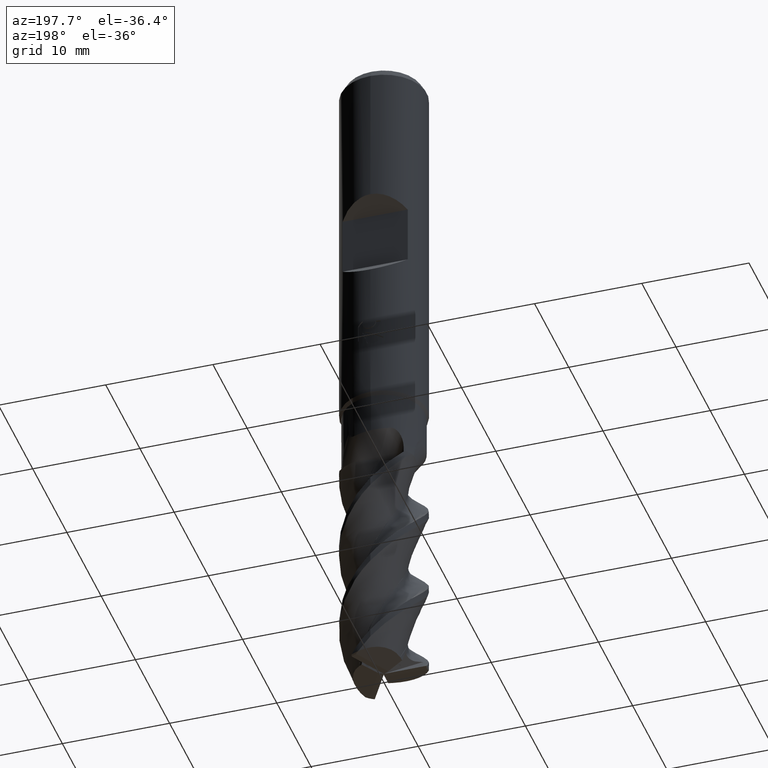
[diagram: clean part render]
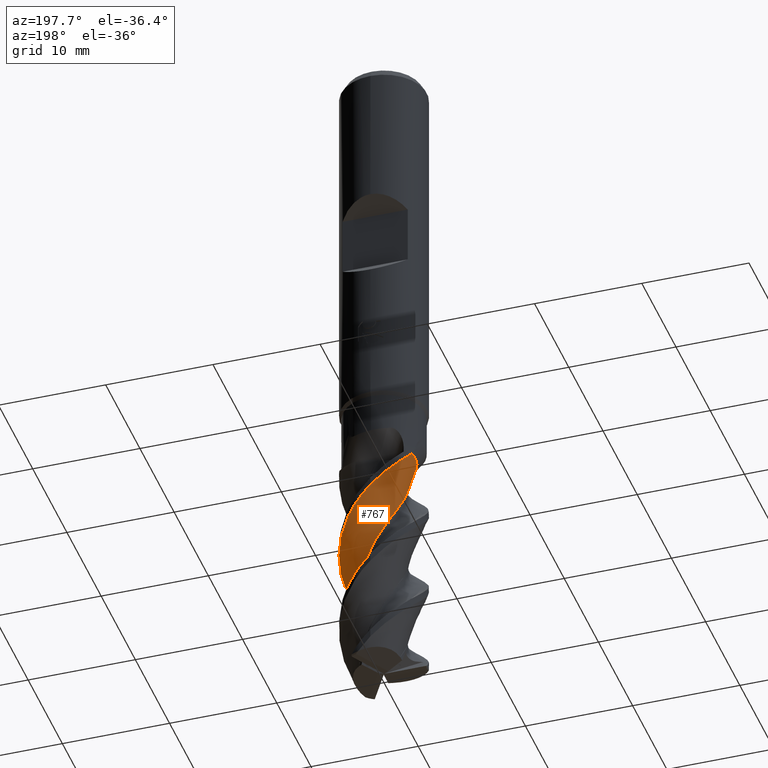
[diagram: same view with one face highlighted and labeled with its STEP entity id]
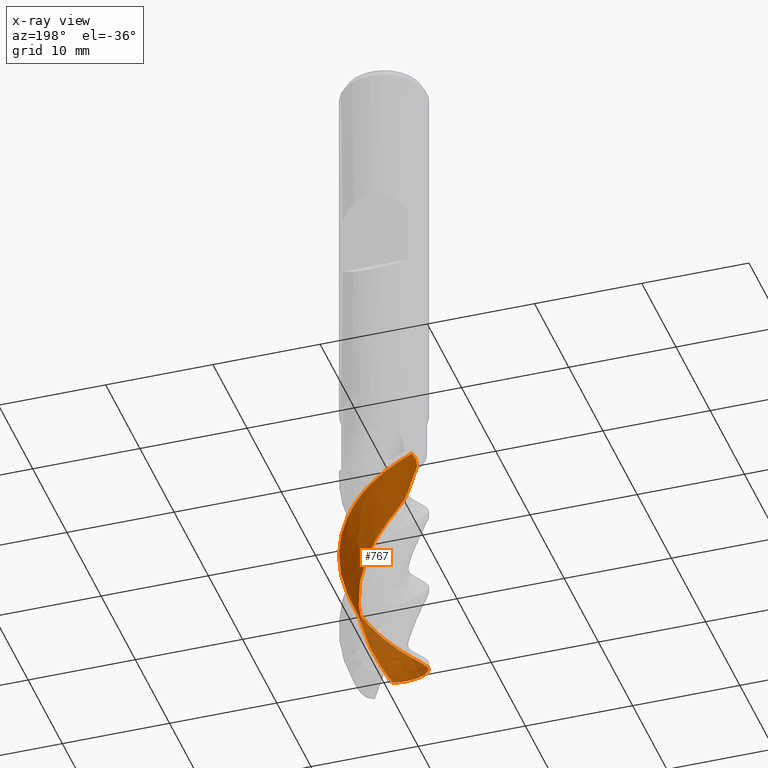
[diagram: x-ray of the same camera — body ghosted, the highlighted face saturated]
A machine part, auxiliary view. The second image highlights one B-rep face of the part: STEP entity #767.
The next image is the same camera in x-ray: the body ghosted, the highlighted face saturated — about 5% of this face is hidden behind the body in this view.
In plain terms, the highlighted face is a freeform B-spline surface patch.
Its self-contained STEP definition (entity closure, byte-faithful):
#705=VERTEX_POINT('',#1667);
#715=VERTEX_POINT('',#1677);
#767=ADVANCED_FACE('',(#1730),#1731,.T.);
#789=EDGE_CURVE('',#1345,#995,#1755,.T.);
#907=VERTEX_POINT('',#1887);
#943=EDGE_CURVE('',#1091,#715,#1924,.T.);
#995=VERTEX_POINT('',#1980);
#1051=EDGE_CURVE('',#907,#1091,#2040,.T.);
#1091=VERTEX_POINT('',#2084);
#1133=VERTEX_POINT('',#2129);
#1147=EDGE_CURVE('',#1133,#907,#2143,.T.);
#1209=EDGE_CURVE('',#705,#1133,#2213,.T.);
#1343=EDGE_CURVE('',#715,#1345,#2359,.T.);
#1345=VERTEX_POINT('',#2361);
#1397=EDGE_CURVE('',#995,#705,#2419,.T.);
#1667=CARTESIAN_POINT('',(-3.11849878262376E-010,3.99991785518104,-45.9102846489255));
#1677=CARTESIAN_POINT('',(-0.1212253928335,-2.25761855208542,-63.4433879242641));
#1730=FACE_OUTER_BOUND('',#5062,.T.);
#1731=B_SPLINE_SURFACE_WITH_KNOTS('',3,3,((#5063,#5064,#5065,#5066,#5067,#5068,#5069,#5070,#5071,#5072,#5073,#5074,#5075,#5076,#5077,#5078,#5079,#5080,#5081,#5082,#5083,#5084,#5085,#5086,#5087,#5088,#5089,#5090,#5091,#5092,#5093,#5094,#5095,#5096,#5097,#5098,#5099,#5100,#5101,#5102,#5103,#5104,#5105,#5106,#5107,#5108,#5109,#5110,#5111,#5112,#5113,#5114,#5115,#5116),(#5117,#5118,#5119,#5120,#5121,#5122,#5123,#5124,#5125,#5126,#5127,#5128,#5129,#5130,#5131,#5132,#5133,#5134,#5135,#5136,#5137,#5138,#5139,#5140,#5141,#5142,#5143,#5144,#5145,#5146,#5147,#5148,#5149,#5150,#5151,#5152,#5153,#5154,#5155,#5156,#5157,#5158,#5159,#5160,#5161,#5162,#5163,#5164,#5165,#5166,#5167,#5168,#5169,#5170),(#5171,#5172,#5173,#5174,#5175,#5176,#5177,#5178,#5179,#5180,#5181,#5182,#5183,#5184,#5185,#5186,#5187,#5188,#5189,#5190,#5191,#5192,#5193,#5194,#5195,#5196,#5197,#5198,#5199,#5200,#5201,#5202,#5203,#5204,#5205,#5206,#5207,#5208,#5209,#5210,#5211,#5212,#5213,#5214,#5215,#5216,#5217,#5218,#5219,#5220,#5221,#5222,#5223,#5224),(#5225,#5226,#5227,#5228,#5229,#5230,#5231,#5232,#5233,#5234,#5235,#5236,#5237,#5238,#5239,#5240,#5241,#5242,#5243,#5244,#5245,#5246,#5247,#5248,#5249,#5250,#5251,#5252,#5253,#5254,#5255,#5256,#5257,#5258,#5259,#5260,#5261,#5262,#5263,#5264,#5265,#5266,#5267,#5268,#5269,#5270,#5271,#5272,#5273,#5274,#5275,#5276,#5277,#5278),(#5279,#5280,#5281,#5282,#5283,#5284,#5285,#5286,#5287,#5288,#5289,#5290,#5291,#5292,#5293,#5294,#5295,#5296,#5297,#5298,#5299,#5300,#5301,#5302,#5303,#5304,#5305,#5306,#5307,#5308,#5309,#5310,#5311,#5312,#5313,#5314,#5315,#5316,#5317,#5318,#5319,#5320,#5321,#5322,#5323,#5324,#5325,#5326,#5327,#5328,#5329,#5330,#5331,#5332),(#5333,#5334,#5335,#5336,#5337,#5338,#5339,#5340,#5341,#5342,#5343,#5344,#5345,#5346,#5347,#5348,#5349,#5350,#5351,#5352,#5353,#5354,#5355,#5356,#5357,#5358,#5359,#5360,#5361,#5362,#5363,#5364,#5365,#5366,#5367,#5368,#5369,#5370,#5371,#5372,#5373,#5374,#5375,#5376,#5377,#5378,#5379,#5380,#5381,#5382,#5383,#5384,#5385,#5386),(#5387,#5388,#5389,#5390,#5391,#5392,#5393,#5394,#5395,#5396,#5397,#5398,#5399,#5400,#5401,#5402,#5403,#5404,#5405,#5406,#5407,#5408,#5409,#5410,#5411,#5412,#5413,#5414,#5415,#5416,#5417,#5418,#5419,#5420,#5421,#5422,#5423,#5424,#5425,#5426,#5427,#5428,#5429,#5430,#5431,#5432,#5433,#5434,#5435,#5436,#5437,#5438,#5439,#5440)),.UNSPECIFIED.,.F.,.F.,.F.,(4,1,1,1,4),(4,1,2,1,2,1,2,1,1,2,1,2,1,2,1,2,1,2,1,2,1,2,1,2,1,2,1,2,1,2,1,2,1,2,1,4),(-1.379010217161,-1.03425766287075,-0.689505108580499,-0.34475255429025,0.0),(0.0,0.596702157013119,1.19340431402624,1.79010647103936,2.38680862805248,3.58021294207871,4.77361725610495,5.66867049162463,6.56372372714431,7.16042588415743,8.35383019818367,9.5472345122099,10.7406388262361,11.9340431402624,13.1274474542886,14.3208517683149,15.5142560823411,16.7076603963673,17.9010647103936,19.0944690244198,20.287873338446,21.4812776524723,22.6746819664985,23.8680862805248,25.061490594551,26.2548949085772,27.4482992226035,28.6417035366297,29.8351078506559,31.0285121646822,32.2219164787084,33.4153207927347,34.6087251067609,35.8021294207871,36.9955337348134,38.1889380488396),.UNSPECIFIED.);
#1755=B_SPLINE_CURVE_WITH_KNOTS('',3,(#5751,#5752,#5753,#5754,#5755,#5756,#5757,#5758,#5759,#5760,#5761,#5762,#5763,#5764,#5765,#5766,#5767,#5768,#5769,#5770,#5771,#5772,#5773,#5774,#5775,#5776,#5777,#5778,#5779,#5780,#5781,#5782,#5783,#5784,#5785,#5786,#5787,#5788,#5789,#5790,#5791,#5792,#5793,#5794,#5795,#5796,#5797,#5798,#5799,#5800),.UNSPECIFIED.,.F.,.F.,(4,2,2,2,2,2,2,2,2,2,2,2,2,2,2,2,2,2,2,2,2,2,2,2,4),(0.0,1.5019320736282,2.30167969923932,3.9873909391411,5.35082874484163,5.58136968233963,8.37320094599386,9.31668018434213,10.3901732542308,10.7300989914793,11.4410454786039,11.9612889898165,13.0401489425727,13.7303633139196,14.2408802886716,15.2992926305163,15.9583148827374,16.5048707961732,17.5976525858075,18.2710035322948,18.8306730159408,19.1129636463635,20.0328987728864,20.4245661432415,20.9625089316969),.UNSPECIFIED.);
#1887=CARTESIAN_POINT('',(-2.36372497592398,-0.881446417989688,-42.0));
#1924=B_SPLINE_CURVE_WITH_KNOTS('',3,(#6692,#6693,#6694,#6695,#6696,#6697,#6698,#6699,#6700,#6701,#6702,#6703,#6704,#6705,#6706,#6707,#6708,#6709,#6710,#6711,#6712,#6713,#6714,#6715,#6716,#6717,#6718,#6719,#6720,#6721,#6722,#6723,#6724,#6725,#6726,#6727,#6728,#6729,#6730,#6731,#6732,#6733,#6734,#6735,#6736,#6737,#6738,#6739,#6740,#6741,#6742,#6743,#6744,#6745,#6746,#6747,#6748,#6749,#6750,#6751,#6752,#6753,#6754,#6755,#6756,#6757,#6758,#6759,#6760,#6761,#6762,#6763,#6764,#6765,#6766,#6767),.UNSPECIFIED.,.F.,.F.,(4,2,2,2,2,2,2,2,2,2,2,2,2,2,2,2,2,2,2,2,2,2,2,2,2,2,2,2,2,2,2,2,2,2,2,2,2,4),(0.0,1.18037742148929,1.49701808305915,1.95959483348891,2.67746754361275,3.79713178022076,4.14002145122269,4.60844758057066,5.30515882748962,6.37300685469509,6.776320858392,7.26030495488413,7.95284892402853,8.91025736087777,9.52335516700366,10.0061806605187,10.71539616222,11.7246894309908,12.3011027173018,12.7710360444409,13.4910307613648,14.6126427446288,14.9709939053506,15.4487081959483,16.1507914100792,17.1498937906292,17.7255742350812,18.1885280152327,18.9064881543625,20.0367618561527,20.3687457059696,20.8324621225086,21.5150263615578,22.4881558309022,23.0597058059816,23.5083627632908,24.2516933758726,25.575740624455),.UNSPECIFIED.);
#1980=CARTESIAN_POINT('',(7.29910046009579E-012,-3.99997520995625,-58.4709804179851));
#2040=B_SPLINE_CURVE_WITH_KNOTS('',3,(#7471,#7472,#7473,#7474,#7475,#7476,#7477,#7478,#7479,#7480),.UNSPECIFIED.,.F.,.F.,(4,2,2,2,4),(0.0,1.29194289761601,2.58380881293689,3.55072295078969,4.51761118303135),.UNSPECIFIED.);
#2084=CARTESIAN_POINT('',(-1.87331624068304,-1.2659426746363,-42.0));
#2129=CARTESIAN_POINT('',(-3.31442437593574,2.23914963015046,-42.0));
#2143=B_SPLINE_CURVE_WITH_KNOTS('',3,(#8717,#8718,#8719,#8720,#8721,#8722,#8723,#8724,#8725,#8726),.UNSPECIFIED.,.F.,.F.,(4,2,2,2,4),(0.0,1.29194289761601,2.58380881293689,3.55072295078969,4.51761118303135),.UNSPECIFIED.);
#2213=B_SPLINE_CURVE_WITH_KNOTS('',3,(#9910,#9911,#9912,#9913,#9914,#9915,#9916,#9917,#9918,#9919,#9920,#9921,#9922,#9923,#9924,#9925,#9926,#9927,#9928,#9929,#9930,#9931,#9932,#9933,#9934,#9935,#9936,#9937,#9938,#9939,#9940,#9941,#9942,#9943,#9944,#9945,#9946,#9947,#9948,#9949,#9950,#9951,#9952,#9953,#9954,#9955,#9956,#9957,#9958,#9959),.UNSPECIFIED.,.F.,.F.,(4,2,2,2,2,2,2,2,2,2,2,2,2,2,2,2,2,2,2,2,2,2,2,2,4),(0.0,1.5019320736282,2.30167969923932,3.9873909391411,5.35082874484163,5.58136968233963,8.37320094599386,9.31668018434213,10.3901732542308,10.7300989914793,11.4410454786039,11.9612889898165,13.0401489425727,13.7303633139196,14.2408802886716,15.2992926305163,15.9583148827374,16.5048707961732,17.5976525858075,18.2710035322948,18.8306730159408,19.1129636463635,20.0328987728864,20.4245661432415,20.9625089316969),.UNSPECIFIED.);
#2359=B_SPLINE_CURVE_WITH_KNOTS('',3,(#10414,#10415,#10416,#10417,#10418,#10419,#10420,#10421,#10422,#10423),.UNSPECIFIED.,.F.,.F.,(4,2,2,2,4),(0.0,1.18658760878357,2.2950963691895,3.39461865026044,4.65108845101042),.UNSPECIFIED.);
#2361=CARTESIAN_POINT('',(-3.90632346375569,-0.860602636585305,-63.8973059111609));
#2419=B_SPLINE_CURVE_WITH_KNOTS('',3,(#10554,#10555,#10556,#10557,#10558,#10559,#10560,#10561,#10562,#10563,#10564,#10565,#10566,#10567,#10568,#10569,#10570,#10571,#10572,#10573,#10574,#10575,#10576,#10577,#10578,#10579,#10580,#10581,#10582,#10583,#10584,#10585,#10586,#10587,#10588,#10589,#10590,#10591,#10592,#10593,#10594,#10595,#10596,#10597,#10598,#10599,#10600,#10601,#10602,#10603),.UNSPECIFIED.,.F.,.F.,(4,2,2,2,2,2,2,2,2,2,2,2,2,2,2,2,2,2,2,2,2,2,2,2,4),(0.0,1.5019320736282,2.30167969923932,3.9873909391411,5.35082874484163,5.58136968233963,8.37320094599386,9.31668018434213,10.3901732542308,10.7300989914793,11.4410454786039,11.9612889898165,13.0401489425727,13.7303633139196,14.2408802886716,15.2992926305163,15.9583148827374,16.5048707961732,17.5976525858075,18.2710035322948,18.8306730159408,19.1129636463635,20.0328987728864,20.4245661432415,20.9625089316969),.UNSPECIFIED.);
#5062=EDGE_LOOP('',(#10939,#10940,#10941,#10942,#10943,#10944,#10945));
#5063=CARTESIAN_POINT('',(1.15304011943553,3.99701119365289,-72.0));
#5064=CARTESIAN_POINT('',(1.10307411583323,4.01136806196119,-71.8020813202914));
#5065=CARTESIAN_POINT('',(0.911612229838441,4.06656231678808,-71.4062905601514));
#5066=CARTESIAN_POINT('',(0.513910679057194,4.13446641390095,-71.0105017283267));
#5067=CARTESIAN_POINT('',(0.0131418279622062,4.1657079041354,-70.61462246108));
#5068=CARTESIAN_POINT('',(-0.456351162150208,4.15072582430504,-70.2187330544913));
#5069=CARTESIAN_POINT('',(-0.867955779449435,4.07211228531082,-69.8228827720323));
#5070=CARTESIAN_POINT('',(-1.45410845685072,3.91748668745529,-69.2291634437986));
#5071=CARTESIAN_POINT('',(-2.18426021713234,3.60571489934522,-68.4375244686398));
#5072=CARTESIAN_POINT('',(-2.82094834824611,3.08562635095935,-67.6458884122936));
#5073=CARTESIAN_POINT('',(-3.31994854204436,2.52512904058913,-66.9531593066781));
#5074=CARTESIAN_POINT('',(-3.67551024698533,2.01556888373412,-66.3593807572199));
#5075=CARTESIAN_POINT('',(-3.98519245165481,1.26972307772883,-65.5677109106745));
#5076=CARTESIAN_POINT('',(-4.09396694856037,0.761283492313328,-65.0729294176987));
#5077=CARTESIAN_POINT('',(-4.17844242829914,0.128987733852306,-64.4791848023263));
#5078=CARTESIAN_POINT('',(-4.15985279671139,-0.689653892028053,-63.6875020067818));
#5079=CARTESIAN_POINT('',(-3.91332404746729,-1.47014858461339,-62.8958552330718));
#5080=CARTESIAN_POINT('',(-3.53503164416277,-2.23147624779334,-62.1041865201155));
#5081=CARTESIAN_POINT('',(-3.06228519688327,-2.89845469415552,-61.3124981049296));
#5082=CARTESIAN_POINT('',(-2.42193031830165,-3.40734883416792,-60.5208519008651));
#5083=CARTESIAN_POINT('',(-1.68190333431561,-3.8271884157118,-59.7291850858659));
#5084=CARTESIAN_POINT('',(-0.916277992913595,-4.11576434126401,-58.9374974814654));
#5085=CARTESIAN_POINT('',(-0.100707297293955,-4.1791747762967,-58.1458509698201));
#5086=CARTESIAN_POINT('',(0.74727110519455,-4.11310816283265,-57.3541839688199));
#5087=CARTESIAN_POINT('',(1.54311043726164,-3.9240018695313,-56.5624964070769));
#5088=CARTESIAN_POINT('',(2.25458848742038,-3.5202996069461,-55.7708499939011));
#5089=CARTESIAN_POINT('',(2.92053601643748,-2.99108172655707,-54.9791829406379));
#5090=CARTESIAN_POINT('',(3.47439248217986,-2.38905652272247,-54.1874953020299));
#5091=CARTESIAN_POINT('',(3.83823089604683,-1.65639890062971,-53.3958488670571));
#5092=CARTESIAN_POINT('',(4.09411178973261,-0.845189465272828,-52.6041818508217));
#5093=CARTESIAN_POINT('',(4.21635821943666,-0.0363380111583369,-51.8124942430695));
#5094=CARTESIAN_POINT('',(4.10802236571146,0.774484885943555,-51.0208478086118));
#5095=CARTESIAN_POINT('',(3.86625873801061,1.5900128555277,-50.2291807769718));
#5096=CARTESIAN_POINT('',(3.51505252695043,2.32881994020763,-49.4374931628747));
#5097=CARTESIAN_POINT('',(2.97162422343088,2.94025972563955,-48.6458467367247));
#5098=CARTESIAN_POINT('',(2.31496793793714,3.48095168812561,-47.8541797150624));
#5099=CARTESIAN_POINT('',(1.61052550011802,3.89681921914383,-47.0624920929035));
#5100=CARTESIAN_POINT('',(0.818035783157828,4.09957161833961,-46.2708456519592));
#5101=CARTESIAN_POINT('',(-0.0287116946087465,4.18034278519317,-45.4791786316819));
#5102=CARTESIAN_POINT('',(-0.845258229438326,4.13092788844333,-44.6874910452033));
#5103=CARTESIAN_POINT('',(-1.6156045731836,3.85558293940931,-43.8958445795726));
#5104=CARTESIAN_POINT('',(-2.36267821521128,3.44875068537477,-43.1041774417391));
#5105=CARTESIAN_POINT('',(-3.01177451622227,2.95095147748138,-42.312489753647));
#5106=CARTESIAN_POINT('',(-3.49613108350719,2.29188098332884,-41.5208436454148));
#5107=CARTESIAN_POINT('',(-3.88769397122767,1.5368450261142,-40.7291772343719));
#5108=CARTESIAN_POINT('',(-4.14731087580296,0.760943061323711,-39.9374897221193));
#5109=CARTESIAN_POINT('',(-4.17999758266269,-0.0564958011323284,-39.1458417326105));
#5110=CARTESIAN_POINT('',(-4.08213725621793,-0.901182870386352,-38.3541723630751));
#5111=CARTESIAN_POINT('',(-3.86346495695944,-1.68897837179523,-37.5624849927617));
#5112=CARTESIAN_POINT('',(-3.4327914586649,-2.38593367473841,-36.7708438884744));
#5113=CARTESIAN_POINT('',(-2.87680712458045,-3.03339646276299,-35.9791834142589));
#5114=CARTESIAN_POINT('',(-2.25297175767357,-3.56370236614655,-35.1874939124835));
#5115=CARTESIAN_POINT('',(-1.51484694134502,-3.89561822365072,-34.3958454903467));
#5116=CARTESIAN_POINT('',(-1.11154215135504,-4.00740281809327,-34.0000165176675));
#5117=CARTESIAN_POINT('',(0.773553663049857,3.97622667072128,-72.0));
#5118=CARTESIAN_POINT('',(0.723915063900007,3.98460618851655,-71.8020532782205));
#5119=CARTESIAN_POINT('',(0.533675109813408,4.01991538887738,-71.4064025136208));
#5120=CARTESIAN_POINT('',(0.142347622469255,4.05144904808934,-71.010787631407));
#5121=CARTESIAN_POINT('',(-0.345991845290189,4.03932141567001,-70.6147640019621));
#5122=CARTESIAN_POINT('',(-0.800018478686602,3.98478675705426,-70.2186859232659));
#5123=CARTESIAN_POINT('',(-1.19229929356492,3.87315059980749,-69.8227725339661));
#5124=CARTESIAN_POINT('',(-1.74716096271821,3.67267815542861,-69.2291526250204));
#5125=CARTESIAN_POINT('',(-2.42794094663071,3.30731687766596,-68.4376082666843));
#5126=CARTESIAN_POINT('',(-3.00031002138144,2.74828984489645,-67.6460819923197));
#5127=CARTESIAN_POINT('',(-3.4360229871954,2.16205086889251,-66.9532850013498));
#5128=CARTESIAN_POINT('',(-3.73684299727157,1.63742925369333,-66.3594105296844));
#5129=CARTESIAN_POINT('',(-3.97265206710751,0.887698092379185,-65.5677303288982));
#5130=CARTESIAN_POINT('',(-4.03434485139921,0.385434010580304,-65.0729837887939));
#5131=CARTESIAN_POINT('',(-4.06194505953976,-0.234841690973944,-64.4792580231333));
#5132=CARTESIAN_POINT('',(-3.97331001836916,-1.02684818877239,-63.6875213360801));
#5133=CARTESIAN_POINT('',(-3.66702328122506,-1.76217363568106,-62.8959439642783));
#5134=CARTESIAN_POINT('',(-3.23488251206179,-2.46780746569371,-62.1042696481766));
#5135=CARTESIAN_POINT('',(-2.71905283568586,-3.07360606814949,-61.3125082659024));
#5136=CARTESIAN_POINT('',(-2.05442549073329,-3.51168088219307,-60.5209330384195));
#5137=CARTESIAN_POINT('',(-1.30090346914265,-3.85517630680338,-59.7292668893013));
#5138=CARTESIAN_POINT('',(-0.533795854630686,-4.06888291717184,-58.9375090660264));
#5139=CARTESIAN_POINT('',(0.262258342540562,-4.06001095691217,-58.1459325703833));
#5140=CARTESIAN_POINT('',(1.0787152003109,-3.92313938731576,-57.354265666829));
#5141=CARTESIAN_POINT('',(1.83390557182417,-3.67116257625626,-56.5625080290744));
#5142=CARTESIAN_POINT('',(2.48876936904884,-3.2184658332068,-55.7709319457535));
#5143=CARTESIAN_POINT('',(3.08897218394027,-2.64819280579049,-54.9792647950443));
#5144=CARTESIAN_POINT('',(3.57395905054645,-2.01679834997079,-54.1875068174522));
#5145=CARTESIAN_POINT('',(3.8634622013783,-1.27520649638032,-53.3959306451377));
#5146=CARTESIAN_POINT('',(4.04188247427317,-0.466751071976041,-52.6042636613844));
#5147=CARTESIAN_POINT('',(4.0906154625709,0.327912474906153,-51.8125058190114));
#5148=CARTESIAN_POINT('',(3.91566825595093,1.10455179903051,-51.020929654302));
#5149=CARTESIAN_POINT('',(3.61124235510391,1.87445996457631,-50.2292625901799));
#5150=CARTESIAN_POINT('',(3.20704250060331,2.56037873090319,-49.4375047232473));
#5151=CARTESIAN_POINT('',(2.62752818068702,3.10621815847386,-48.6459285987414));
#5152=CARTESIAN_POINT('',(1.9444573180637,3.57403988976363,-47.8542615770791));
#5153=CARTESIAN_POINT('',(1.22568096410251,3.91642230504754,-47.0625036916268));
#5154=CARTESIAN_POINT('',(0.439983040015141,4.04461404153388,-46.2709274879366));
#5155=CARTESIAN_POINT('',(-0.387889952432703,4.05021040463278,-45.4792604676593));
#5156=CARTESIAN_POINT('',(-1.17520495353039,3.93186742637241,-44.6875026913733));
#5157=CARTESIAN_POINT('',(-1.89820408815184,3.59851881204435,-43.8959264074791));
#5158=CARTESIAN_POINT('',(-2.58756993673675,3.13993453732009,-43.1042589123436));
#5159=CARTESIAN_POINT('',(-3.17387509209367,2.60136289168832,-42.3125008373635));
#5160=CARTESIAN_POINT('',(-3.58654998990968,1.92070929448706,-41.520926061539));
#5161=CARTESIAN_POINT('',(-3.90133987775628,1.15506362558245,-40.7292615669342));
#5162=CARTESIAN_POINT('',(-4.08608689812754,0.380491923375183,-39.9375037837581));
#5163=CARTESIAN_POINT('',(-4.04727161349491,-0.414723731497653,-39.1459208353621));
#5164=CARTESIAN_POINT('',(-3.87985557686374,-1.22525818676915,-38.3542442548222));
#5165=CARTESIAN_POINT('',(-3.59990633919876,-1.97009675148609,-37.5624888174572));
#5166=CARTESIAN_POINT('',(-3.12232544324979,-2.6085636033908,-36.7709351394703));
#5167=CARTESIAN_POINT('',(-2.52770224298244,-3.18856814796368,-35.979292855176));
#5168=CARTESIAN_POINT('',(-1.87719641311613,-3.64885557654043,-35.1875194353338));
#5169=CARTESIAN_POINT('',(-1.13304401033464,-3.90687178020918,-34.3959078951402));
#5170=CARTESIAN_POINT('',(-0.732435986145744,-3.98056107268243,-34.0000728808087));
#5171=CARTESIAN_POINT('',(0.0219083049211839,3.80258242902903,-72.0));
#5172=CARTESIAN_POINT('',(-0.0249951493722225,3.79912266484012,-71.8020009420561));
#5173=CARTESIAN_POINT('',(-0.205870539632904,3.79509196414015,-71.4066114576921));
#5174=CARTESIAN_POINT('',(-0.571792761910091,3.75611215944329,-71.0113212246698));
#5175=CARTESIAN_POINT('',(-1.02018186936918,3.66158304194736,-70.6150281666361));
#5176=CARTESIAN_POINT('',(-1.42951332154651,3.53333605492093,-70.2185979607475));
#5177=CARTESIAN_POINT('',(-1.77165776934463,3.36238843369037,-69.8225667899253));
#5178=CARTESIAN_POINT('',(-2.24798812050605,3.08112444663999,-69.2291324369838));
#5179=CARTESIAN_POINT('',(-2.81138490409375,2.62578124149414,-68.4377646614483));
#5180=CARTESIAN_POINT('',(-3.24157913519586,2.01127306487828,-67.6464432785252));
#5181=CARTESIAN_POINT('',(-3.54177387396537,1.39558425227341,-66.9535195916753));
#5182=CARTESIAN_POINT('',(-3.72788182110443,0.859896284165136,-66.3594660947617));
#5183=CARTESIAN_POINT('',(-3.81461054288802,0.128106927241116,-65.5677665698732));
#5184=CARTESIAN_POINT('',(-3.78430087079223,-0.345420871966345,-65.0730852639677));
#5185=CARTESIAN_POINT('',(-3.70234815289215,-0.921863974384919,-64.4793946785276));
#5186=CARTESIAN_POINT('',(-3.4829098925354,-1.63622746230047,-63.6875574136088));
#5187=CARTESIAN_POINT('',(-3.07284306382664,-2.26042677134705,-62.8961095624546));
#5188=CARTESIAN_POINT('',(-2.55240308327089,-2.83594472309334,-62.1044247986951));
#5189=CARTESIAN_POINT('',(-1.97171121886513,-3.30440359352759,-61.3125272378856));
#5190=CARTESIAN_POINT('',(-1.28319359207256,-3.59240915340083,-60.5210844480187));
#5191=CARTESIAN_POINT('',(-0.529256420235533,-3.7785381403771,-59.7294195838109));
#5192=CARTESIAN_POINT('',(0.214757099906262,-3.84200867027035,-58.9375306738999));
#5193=CARTESIAN_POINT('',(0.946625209899237,-3.6953823943246,-58.14608486997));
#5194=CARTESIAN_POINT('',(1.67540307044295,-3.42788950793789,-57.3544181387319));
#5195=CARTESIAN_POINT('',(2.32742343985621,-3.06433497508728,-56.5625297200422));
#5196=CARTESIAN_POINT('',(2.85202014673765,-2.53336596506288,-55.7710849003343));
#5197=CARTESIAN_POINT('',(3.3064604769339,-1.90387520286488,-54.9794175594864));
#5198=CARTESIAN_POINT('',(3.64350316190815,-1.23771957260856,-54.1875283051801));
#5199=CARTESIAN_POINT('',(3.78124448914156,-0.504133834537147,-53.3960832834235));
#5200=CARTESIAN_POINT('',(3.80572120227086,0.271854045531529,-52.6044163359532));
#5201=CARTESIAN_POINT('',(3.71238347975272,1.0125589255716,-51.8125274358845));
#5202=CARTESIAN_POINT('',(3.41612758780271,1.69765542054424,-51.021082394468));
#5203=CARTESIAN_POINT('',(3.00227055922336,2.3545256177236,-50.2294152939873));
#5204=CARTESIAN_POINT('',(2.51050426671556,2.91623632587424,-49.4375263099627));
#5205=CARTESIAN_POINT('',(1.88165901224131,3.31833144883361,-48.6460813472098));
#5206=CARTESIAN_POINT('',(1.17112800174598,3.63123708713547,-47.8544143941361));
#5207=CARTESIAN_POINT('',(0.449263853462504,3.82167845070213,-47.0625253205088));
#5208=CARTESIAN_POINT('',(-0.296901310020093,3.80313110603174,-46.2710802244501));
#5209=CARTESIAN_POINT('',(-1.06086538085681,3.66496566398028,-45.4794131994782));
#5210=CARTESIAN_POINT('',(-1.76573408272777,3.41895754277187,-44.6875244475775));
#5211=CARTESIAN_POINT('',(-2.37386228931569,2.9860950796468,-43.8960790881001));
#5212=CARTESIAN_POINT('',(-2.92981445864956,2.44410473504564,-43.104411003074));
#5213=CARTESIAN_POINT('',(-3.37636195831542,1.84585272375802,-42.3125214926213));
#5214=CARTESIAN_POINT('',(-3.63817914602705,1.14698704341094,-41.5210799015512));
#5215=CARTESIAN_POINT('',(-3.79574927006874,0.386845432550044,-40.7294189375103));
#5216=CARTESIAN_POINT('',(-3.83123795793256,-0.359007600209499,-39.9375300147686));
#5217=CARTESIAN_POINT('',(-3.65717106487533,-1.08489604879286,-39.1460685171719));
#5218=CARTESIAN_POINT('',(-3.36254761730399,-1.80292479664389,-38.3543783808744));
#5219=CARTESIAN_POINT('',(-2.97501073513574,-2.4405326326575,-37.5624959942119));
#5220=CARTESIAN_POINT('',(-2.42398352274106,-2.9457108759281,-36.7711054169932));
#5221=CARTESIAN_POINT('',(-1.7755709583375,-3.37736726919313,-35.9794971379968));
#5222=CARTESIAN_POINT('',(-1.09610072231742,-3.68835235893133,-35.1875671175961));
#5223=CARTESIAN_POINT('',(-0.365615413456192,-3.79648955236182,-34.3960242401265));
#5224=CARTESIAN_POINT('',(0.0163406671812958,-3.79493623749554,-34.0001780738934));
#5225=CARTESIAN_POINT('',(-0.951236743758369,3.17636335538994,-72.0));
#5226=CARTESIAN_POINT('',(-0.988276457765655,3.15757546567452,-71.801942898766));
#5227=CARTESIAN_POINT('',(-1.13598646199889,3.1027520103719,-71.4068431860021));
#5228=CARTESIAN_POINT('',(-1.43029271497004,2.97710053926365,-71.0119130052929));
#5229=CARTESIAN_POINT('',(-1.78050389614382,2.78649035143486,-70.6153211367236));
#5230=CARTESIAN_POINT('',(-2.08936388315841,2.57683519972217,-70.2185004062316));
#5231=CARTESIAN_POINT('',(-2.33065589596481,2.34756914797969,-69.8223386110116));
#5232=CARTESIAN_POINT('',(-2.65515568804403,1.99205661697175,-69.2291100458886));
#5233=CARTESIAN_POINT('',(-3.00721121451894,1.46918680842996,-68.4379381103792));
#5234=CARTESIAN_POINT('',(-3.20855425852402,0.848429231882208,-67.6468439636695));
#5235=CARTESIAN_POINT('',(-3.30249292528401,0.259867547531473,-66.9537797618376));
#5236=CARTESIAN_POINT('',(-3.32103914923156,-0.233287591521425,-66.3595277222948));
#5237=CARTESIAN_POINT('',(-3.20639116205036,-0.864166287481764,-65.567806762596));
#5238=CARTESIAN_POINT('',(-3.06076035303952,-1.25048087226965,-65.0731978046594));
#5239=CARTESIAN_POINT('',(-2.84636207388248,-1.70949997652407,-64.479546235733));
#5240=CARTESIAN_POINT('',(-2.48161805953091,-2.24793226067187,-63.6875974233948));
#5241=CARTESIAN_POINT('',(-1.98137206935785,-2.66262873690952,-62.8962932222817));
#5242=CARTESIAN_POINT('',(-1.4022363246382,-3.0096824359338,-62.1045968641124));
#5243=CARTESIAN_POINT('',(-0.799599610456682,-3.25136039371342,-61.312548271132));
#5244=CARTESIAN_POINT('',(-0.153435128986839,-3.31538521608119,-60.5212523871835));
#5245=CARTESIAN_POINT('',(0.521307014227946,-3.27913257983595,-59.7295889102715));
#5246=CARTESIAN_POINT('',(1.15654988266788,-3.14220683728761,-58.9375546485857));
#5247=CARTESIAN_POINT('',(1.72796135018081,-2.83363885272026,-58.1462537750594));
#5248=CARTESIAN_POINT('',(2.26673133436823,-2.42618496198989,-57.3545872394173));
#5249=CARTESIAN_POINT('',(2.71652818995985,-1.95740900706834,-56.5625537753546));
#5250=CARTESIAN_POINT('',(3.01753058138489,-1.38197698126826,-55.7712545338171));
#5251=CARTESIAN_POINT('',(3.23616031292876,-0.742780382341047,-54.9795869826316));
#5252=CARTESIAN_POINT('',(3.34671114100021,-0.102552945193954,-54.1875521474759));
#5253=CARTESIAN_POINT('',(3.27425291257973,0.542789971804065,-53.3962525433219));
#5254=CARTESIAN_POINT('',(3.09785117679394,1.19489410410487,-52.6045856822334));
#5255=CARTESIAN_POINT('',(2.83129278121509,1.78739314548452,-51.8125513966466));
#5256=CARTESIAN_POINT('',(2.41018242862375,2.2817480994508,-51.0212517940523));
#5257=CARTESIAN_POINT('',(1.89913733627982,2.72355135703531,-50.2295846460009));
#5258=CARTESIAN_POINT('',(1.34671469943099,3.06551003159891,-49.4375502384177));
#5259=CARTESIAN_POINT('',(0.721098678156441,3.23965620538454,-48.6462507804489));
#5260=CARTESIAN_POINT('',(0.0503380972357066,3.31992844649091,-47.8545838473141));
#5261=CARTESIAN_POINT('',(-0.598854812131937,3.29429284499586,-47.062549321251));
#5262=CARTESIAN_POINT('',(-1.21481401532201,3.08862033089911,-46.2712496178389));
#5263=CARTESIAN_POINT('',(-1.81566706809483,2.77989121098369,-45.47958258471));
#5264=CARTESIAN_POINT('',(-2.33941417892516,2.39544284341981,-44.6875485665131));
#5265=CARTESIAN_POINT('',(-2.73491550748174,1.88032286902624,-43.8962484389087));
#5266=CARTESIAN_POINT('',(-3.06022828430221,1.2882168283144,-43.1045796579039));
#5267=CARTESIAN_POINT('',(-3.27920828027392,0.676561544478799,-42.3125444171025));
#5268=CARTESIAN_POINT('',(-3.31881031251928,0.0284652606463489,-41.5212505044975));
#5269=CARTESIAN_POINT('',(-3.25720677312335,-0.644198900389141,-40.7295934816049));
#5270=CARTESIAN_POINT('',(-3.09653112589426,-1.27383616039272,-39.9375591188811));
#5271=CARTESIAN_POINT('',(-2.76666228194995,-1.83327850069485,-39.1462322650329));
#5272=CARTESIAN_POINT('',(-2.33934465159378,-2.35621576817775,-38.3545271710418));
#5273=CARTESIAN_POINT('',(-1.85427825244853,-2.7878899963971,-37.5625039421133));
#5274=CARTESIAN_POINT('',(-1.26713318267623,-3.06765476586266,-36.7712942474712));
#5275=CARTESIAN_POINT('',(-0.617989457018489,-3.2626021575063,-35.979723712389));
#5276=CARTESIAN_POINT('',(0.0266800958367961,-3.34811677166858,-35.1876199544684));
#5277=CARTESIAN_POINT('',(0.661884914738246,-3.25158252936087,-34.3961533468577));
#5278=CARTESIAN_POINT('',(0.979361776437369,-3.1532572340421,-34.0002947379134));
#5279=CARTESIAN_POINT('',(-1.65550051631044,2.25810636708077,-72.0));
#5280=CARTESIAN_POINT('',(-1.67807656914959,2.22822556028593,-71.8019121494092));
#5281=CARTESIAN_POINT('',(-1.77740667805689,2.13680577070012,-71.4069659480463));
#5282=CARTESIAN_POINT('',(-1.97501916586378,1.95378415072772,-71.0122265098393));
#5283=CARTESIAN_POINT('',(-2.20035709407316,1.70592477726023,-70.6154763428677));
#5284=CARTESIAN_POINT('',(-2.38714402072949,1.45360524815914,-70.2184487252308));
#5285=CARTESIAN_POINT('',(-2.5138077187891,1.20353491272427,-69.8222177289212));
#5286=CARTESIAN_POINT('',(-2.67031636033849,0.829453394756289,-69.2290981852508));
#5287=CARTESIAN_POINT('',(-2.80064269374325,0.314452894850237,-68.4380299998534));
#5288=CARTESIAN_POINT('',(-2.78448549501044,-0.234845521051947,-67.6470562272504));
#5289=CARTESIAN_POINT('',(-2.69346950573485,-0.728171015427739,-66.953917595384));
#5290=CARTESIAN_POINT('',(-2.56868549656148,-1.1246674274486,-66.3595603677317));
#5291=CARTESIAN_POINT('',(-2.29861055005046,-1.59251599626962,-65.5678280570427));
#5292=CARTESIAN_POINT('',(-2.07391673681912,-1.85777485437043,-65.0732574226738));
#5293=CARTESIAN_POINT('',(-1.77454827263368,-2.16151743508051,-64.4796265299563));
#5294=CARTESIAN_POINT('',(-1.33250310972527,-2.48526174073612,-63.687618615863));
#5295=CARTESIAN_POINT('',(-0.818185175883131,-2.67230377826512,-62.8963905212915));
#5296=CARTESIAN_POINT('',(-0.261016859021641,-2.78449700433915,-62.1046880161826));
#5297=CARTESIAN_POINT('',(0.285632399850744,-2.80531887278975,-61.3125594134356));
#5298=CARTESIAN_POINT('',(0.816240331524529,-2.67285277615332,-60.5213413587032));
#5299=CARTESIAN_POINT('',(1.34129180112753,-2.45406507477131,-59.7296786105541));
#5300=CARTESIAN_POINT('',(1.80643826874582,-2.16529144816123,-58.9375673521727));
#5301=CARTESIAN_POINT('',(2.17210381200649,-1.7585353383783,-58.1463432530626));
#5302=CARTESIAN_POINT('',(2.4847435259983,-1.28356788651984,-57.3546768253239));
#5303=CARTESIAN_POINT('',(2.70865344160308,-0.784102592999535,-56.5625665260768));
#5304=CARTESIAN_POINT('',(2.78418881423365,-0.242387621197072,-55.7713443836149));
#5305=CARTESIAN_POINT('',(2.77760018808117,0.326250906594222,-54.9796767534464));
#5306=CARTESIAN_POINT('',(2.68374583607818,0.865531827119783,-54.1875647761473));
#5307=CARTESIAN_POINT('',(2.44327569044274,1.3567855264153,-53.3963421995328));
#5308=CARTESIAN_POINT('',(2.11967976785991,1.8244063015142,-52.6046754079965));
#5309=CARTESIAN_POINT('',(1.74017762445968,2.21887774406578,-51.8125640883401));
#5310=CARTESIAN_POINT('',(1.26601950006343,2.49151722988778,-51.0213415280825));
#5311=CARTESIAN_POINT('',(0.736186292571585,2.6980605985819,-50.2296743709885));
#5312=CARTESIAN_POINT('',(0.200941532506227,2.81269589215094,-49.4375629130265));
#5313=CARTESIAN_POINT('',(-0.344599182278109,2.77339432503921,-48.6463405360486));
#5314=CARTESIAN_POINT('',(-0.899309790523714,2.64815916969031,-47.8546736221485));
#5315=CARTESIAN_POINT('',(-1.40708269714541,2.4437175383553,-47.0625620481753));
#5316=CARTESIAN_POINT('',(-1.83725622613021,2.10593164303329,-46.2713393280197));
#5317=CARTESIAN_POINT('',(-2.2269513071108,1.69179670731308,-45.4796723478536));
#5318=CARTESIAN_POINT('',(-2.53344559429946,1.23826293416153,-44.6875613396362));
#5319=CARTESIAN_POINT('',(-2.70102938257255,0.717582427963898,-43.8963381350718));
#5320=CARTESIAN_POINT('',(-2.79233415457018,0.156254221599466,-43.1046690255729));
#5321=CARTESIAN_POINT('',(-2.79260440954825,-0.391108683889386,-42.312556550687));
#5322=CARTESIAN_POINT('',(-2.64022152663125,-0.916323966680749,-41.5213408860422));
#5323=CARTESIAN_POINT('',(-2.40190124062883,-1.43258641483853,-40.7296859471661));
#5324=CARTESIAN_POINT('',(-2.09587678404709,-1.88655033492002,-39.9375745134541));
#5325=CARTESIAN_POINT('',(-1.67562254288515,-2.23668458230871,-39.1463190625607));
#5326=CARTESIAN_POINT('',(-1.18934869622777,-2.53116288358431,-38.3546059455009));
#5327=CARTESIAN_POINT('',(-0.682086199904483,-2.73605783693811,-37.5625081671542));
#5328=CARTESIAN_POINT('',(-0.137127196963092,-2.79146372780225,-36.771394303838));
#5329=CARTESIAN_POINT('',(0.432708137018135,-2.76338022142204,-35.9798437233396));
#5330=CARTESIAN_POINT('',(0.968425808053953,-2.6484494397552,-35.1876479736378));
#5331=CARTESIAN_POINT('',(1.44478599789925,-2.39148459432974,-34.3962217076268));
#5332=CARTESIAN_POINT('',(1.6688724581605,-2.22387121419978,-34.0003565425296));
#5333=CARTESIAN_POINT('',(-1.8904487797356,1.52330239591639,-72.0));
#5334=CARTESIAN_POINT('',(-1.9014507997542,1.48972092505813,-71.801912261879));
#5335=CARTESIAN_POINT('',(-1.9621812154457,1.38624183319926,-71.4069654990797));
#5336=CARTESIAN_POINT('',(-2.08620107529424,1.18901375074636,-71.0122253633858));
#5337=CARTESIAN_POINT('',(-2.22029365057486,0.933373415868152,-70.6154757752465));
#5338=CARTESIAN_POINT('',(-2.32087844593605,0.681792487681041,-70.2184489132746));
#5339=CARTESIAN_POINT('',(-2.37093654555459,0.444498267097699,-69.8222181729269));
#5340=CARTESIAN_POINT('',(-2.41786334675294,0.0966193540323388,-69.229098224746));
#5341=CARTESIAN_POINT('',(-2.4108498213097,-0.363482567507273,-68.4380296618743));
#5342=CARTESIAN_POINT('',(-2.27433447320472,-0.818939029510664,-67.6470554587594));
#5343=CARTESIAN_POINT('',(-2.08873699959758,-1.21083814887415,-66.9539170855107));
#5344=CARTESIAN_POINT('',(-1.89580724725105,-1.51439476615041,-66.3595602501654));
#5345=CARTESIAN_POINT('',(-1.56495227263713,-1.84493639429684,-65.5678279751817));
#5346=CARTESIAN_POINT('',(-1.31793129989001,-2.01642985920726,-65.0732572089583));
#5347=CARTESIAN_POINT('',(-1.00024033074582,-2.20360586641222,-64.4796262277085));
#5348=CARTESIAN_POINT('',(-0.558071191216526,-2.37523683235196,-63.6876185485844));
#5349=CARTESIAN_POINT('',(-0.0862209892459334,-2.41627756887621,-62.8963901536387));
#5350=CARTESIAN_POINT('',(0.404244768891155,-2.38606903408073,-62.1046876946661));
#5351=CARTESIAN_POINT('',(0.866002817971948,-2.2809410855277,-61.3125593705627));
#5352=CARTESIAN_POINT('',(1.27983597844156,-2.05123437531936,-60.5213410257651));
#5353=CARTESIAN_POINT('',(1.6698415290854,-1.75165328140048,-59.7296782900898));
#5354=CARTESIAN_POINT('',(1.99405411223101,-1.40593735405347,-58.9375673012635));
#5355=CARTESIAN_POINT('',(2.20851020256093,-0.983937874505359,-58.146342927174));
#5356=CARTESIAN_POINT('',(2.36406309018553,-0.517565423287508,-57.354676496376));
#5357=CARTESIAN_POINT('',(2.43933628215929,-0.0497438403054481,-56.5625664731115));
#5358=CARTESIAN_POINT('',(2.38101086306594,0.42001343809721,-55.7713440690407));
#5359=CARTESIAN_POINT('',(2.24901866425335,0.893636223405564,-54.9796764111455));
#5360=CARTESIAN_POINT('',(2.04966627022978,1.32352541283558,-54.187564728526));
#5361=CARTESIAN_POINT('',(1.73850566496694,1.6802459892913,-53.396341888546));
#5362=CARTESIAN_POINT('',(1.36412893205095,1.99895510782737,-52.6046750629896));
#5363=CARTESIAN_POINT('',(0.95838659919515,2.24373473800938,-51.8125640493141));
#5364=CARTESIAN_POINT('',(0.500904539751436,2.36531676710899,-51.021341202012));
#5365=CARTESIAN_POINT('',(0.0122938497576963,2.42002449257861,-50.2296740407747));
#5366=CARTESIAN_POINT('',(-0.460951611698069,2.39590757515504,-49.4375628573162));
#5367=CARTESIAN_POINT('',(-0.908157698481585,2.24073183318418,-48.6463402286217));
#5368=CARTESIAN_POINT('',(-1.34375230748602,2.01271029389309,-47.8546732730392));
#5369=CARTESIAN_POINT('',(-1.72250854926158,1.72795127000963,-47.0625620075194));
#5370=CARTESIAN_POINT('',(-2.00635146454291,1.34913971595712,-46.2713390089996));
#5371=CARTESIAN_POINT('',(-2.23981521681859,0.916452505150594,-45.4796720105432));
#5372=CARTESIAN_POINT('',(-2.39443821290556,0.468527237491607,-44.6875612814941));
#5373=CARTESIAN_POINT('',(-2.41777346823376,-0.00428619091303684,-43.8963378389513));
#5374=CARTESIAN_POINT('',(-2.36919653288194,-0.493576260040783,-43.1046686668637));
#5375=CARTESIAN_POINT('',(-2.2467349059041,-0.951321075263659,-42.3125565242624));
#5376=CARTESIAN_POINT('',(-2.00158887369625,-1.35618154401238,-41.5213405515056));
#5377=CARTESIAN_POINT('',(-1.6876377765513,-1.73449857716498,-40.7296856130282));
#5378=CARTESIAN_POINT('',(-1.33000517826825,-2.04549405098,-39.9375744550247));
#5379=CARTESIAN_POINT('',(-0.900205650173172,-2.24394209933306,-39.1463187453819));
#5380=CARTESIAN_POINT('',(-0.428420405153971,-2.3818007348239,-38.3546056571756));
#5381=CARTESIAN_POINT('',(0.0416686494616672,-2.4394128724085,-37.5625081675246));
#5382=CARTESIAN_POINT('',(0.509606192369753,-2.36356149412895,-36.7713939065611));
#5383=CARTESIAN_POINT('',(0.97942871974154,-2.21341852453763,-35.9798433158194));
#5384=CARTESIAN_POINT('',(1.4016243296785,-1.99727786964359,-35.1876478343318));
#5385=CARTESIAN_POINT('',(1.74217611232445,-1.67545061608507,-34.3962214999191));
#5386=CARTESIAN_POINT('',(1.89205696593345,-1.48540913797894,-34.000356316512));
#5387=CARTESIAN_POINT('',(-1.94241786756857,1.14681709622447,-72.0));
#5388=CARTESIAN_POINT('',(-1.94748980302542,1.11241707542677,-71.80191746528));
#5389=CARTESIAN_POINT('',(-1.98846709254059,1.00634521132404,-71.4069447253684));
#5390=CARTESIAN_POINT('',(-2.0755685006769,0.808437854666274,-71.0121723120522));
#5391=CARTESIAN_POINT('',(-2.16471747336837,0.55672790259113,-70.615449511414));
#5392=CARTESIAN_POINT('',(-2.22352601760203,0.312786402436179,-70.2184576593103));
#5393=CARTESIAN_POINT('',(-2.2374823359029,0.0881635190922692,-69.8222386272811));
#5394=CARTESIAN_POINT('',(-2.23343621774771,-0.237742154158602,-69.2291002343983));
#5395=CARTESIAN_POINT('',(-2.16440105124353,-0.659598555604077,-68.4380141139097));
#5396=CARTESIAN_POINT('',(-1.97739551662528,-1.05934248384032,-67.647019533824));
#5397=CARTESIAN_POINT('',(-1.75445929631724,-1.39402511964085,-66.9538937656222));
#5398=CARTESIAN_POINT('',(-1.53630469799027,-1.6467171094817,-66.3595547238124));
#5399=CARTESIAN_POINT('',(-1.18754728194207,-1.90548243670156,-65.5678243746819));
#5400=CARTESIAN_POINT('',(-0.937609476097189,-2.02958057677637,-65.0732471173909));
#5401=CARTESIAN_POINT('',(-0.62087122696246,-2.15863283934912,-64.479612646356));
#5402=CARTESIAN_POINT('',(-0.191489956730073,-2.25642437327167,-63.6876149551325));
#5403=CARTESIAN_POINT('',(0.247416525944323,-2.23018964993259,-62.8963736972141));
#5404=CARTESIAN_POINT('',(0.693480098112976,-2.13649964897253,-62.1046722614247));
#5405=CARTESIAN_POINT('',(1.103397601973,-1.97741156346473,-61.3125574876596));
#5406=CARTESIAN_POINT('',(1.45234026659863,-1.710371862899,-60.5213259733187));
#5407=CARTESIAN_POINT('',(1.76997650549265,-1.38298376607197,-59.7296631077154));
#5408=CARTESIAN_POINT('',(2.02097658548129,-1.02153439851949,-58.9375651537215));
#5409=CARTESIAN_POINT('',(2.16075491858789,-0.604908175136392,-58.1463277847081));
#5410=CARTESIAN_POINT('',(2.24079090282528,-0.155975469238794,-57.3546613376691));
#5411=CARTESIAN_POINT('',(2.24659527782383,0.28393328439778,-56.5625643197088));
#5412=CARTESIAN_POINT('',(2.12937766487256,0.707459177284717,-55.7713288551113));
#5413=CARTESIAN_POINT('',(1.94454561179265,1.12437356475793,-54.9796612296981));
#5414=CARTESIAN_POINT('',(1.7032288363531,1.49225819171138,-54.1875625896677));
#5415=CARTESIAN_POINT('',(1.36912142724028,1.77771168554003,-53.3963267110465));
#5416=CARTESIAN_POINT('',(0.982675597845086,2.01985666866669,-52.6046598854901));
#5417=CARTESIAN_POINT('',(0.576840971584213,2.18976629745181,-51.8125618983078));
#5418=CARTESIAN_POINT('',(0.140211582261909,2.23944037389859,-51.0213260179966));
#5419=CARTESIAN_POINT('',(-0.315566967621817,2.22393572293955,-50.2296588567592));
#5420=CARTESIAN_POINT('',(-0.74700124961335,2.13771142547276,-49.4375607218385));
#5421=CARTESIAN_POINT('',(-1.13669299029668,1.93460128024203,-48.6463250223188));
#5422=CARTESIAN_POINT('',(-1.50579235341327,1.66675283703764,-47.8546580992182));
#5423=CARTESIAN_POINT('',(-1.81514582541316,1.35390858339493,-47.0625598471719));
#5424=CARTESIAN_POINT('',(-2.02450127769003,0.967544638422585,-46.2713238237715));
#5425=CARTESIAN_POINT('',(-2.18057040393876,0.539048855431717,-45.4796568253152));
#5426=CARTESIAN_POINT('',(-2.26195562709888,0.106673302242471,-44.6875591282547));
#5427=CARTESIAN_POINT('',(-2.21932218234919,-0.330723852627458,-43.8963226396459));
#5428=CARTESIAN_POINT('',(-2.10893757126691,-0.773234940353302,-43.1046535650044));
#5429=CARTESIAN_POINT('',(-1.93447689345608,-1.17711679531753,-42.3125544593964));
#5430=CARTESIAN_POINT('',(-1.65447341052913,-1.51572735442505,-41.521325259475));
#5431=CARTESIAN_POINT('',(-1.31546590317123,-1.82070384899475,-40.7296699636956));
#5432=CARTESIAN_POINT('',(-0.944860666849045,-2.05794987362877,-39.9375718527622));
#5433=CARTESIAN_POINT('',(-0.523240255905336,-2.18197005076551,-39.1463040542263));
#5434=CARTESIAN_POINT('',(-0.0717157874017589,-2.24503632328679,-38.3545923302641));
#5435=CARTESIAN_POINT('',(0.367890913373361,-2.23430382259856,-37.5625074343099));
#5436=CARTESIAN_POINT('',(0.78735924640588,-2.10125159878572,-36.7713770082301));
#5437=CARTESIAN_POINT('',(1.19833048722335,-1.90031391296184,-35.9798229743962));
#5438=CARTESIAN_POINT('',(1.55687904938863,-1.64463903264681,-35.1876431232512));
#5439=CARTESIAN_POINT('',(1.82603704088787,-1.3028013571738,-34.3962099044782));
#5440=CARTESIAN_POINT('',(1.93800748113502,-1.10814196869769,-34.0003458579412));
#5751=CARTESIAN_POINT('',(-3.90689354427903,-0.858010975262464,-63.9));
#5752=CARTESIAN_POINT('',(-3.83153200717587,-1.20115692176039,-63.5433265675189));
#5753=CARTESIAN_POINT('',(-3.71076484386617,-1.53523749864561,-63.1826598550006));
#5754=CARTESIAN_POINT('',(-3.45830255628497,-2.01891980270896,-62.6423497372705));
#5755=CARTESIAN_POINT('',(-3.36084377767461,-2.17718452051363,-62.4645660693751));
#5756=CARTESIAN_POINT('',(-3.01993408061198,-2.65281905306067,-61.889241878508));
#5757=CARTESIAN_POINT('',(-2.74413601622893,-2.9362322613725,-61.4880303648998));
#5758=CARTESIAN_POINT('',(-2.18496159466108,-3.36528670672904,-60.7715288164097));
#5759=CARTESIAN_POINT('',(-1.90992787168541,-3.52939268633796,-60.4512667506203));
#5760=CARTESIAN_POINT('',(-1.56403198602328,-3.68193619521653,-60.0855488267751));
#5761=CARTESIAN_POINT('',(-1.51261244202692,-3.70340203280452,-60.0315409467408));
#5762=CARTESIAN_POINT('',(-0.808803786051724,-3.97909301801627,-59.292711454391));
#5763=CARTESIAN_POINT('',(-0.105380285195419,-4.05900717733592,-58.5686300963381));
#5764=CARTESIAN_POINT('',(0.818120358916557,-3.92250565496806,-57.6564235800455));
#5765=CARTESIAN_POINT('',(1.08960092101284,-3.8619998824029,-57.3884247608362));
#5766=CARTESIAN_POINT('',(1.73142204425056,-3.6241723179601,-56.6986321276742));
#5767=CARTESIAN_POINT('',(2.05437472397538,-3.45144347708515,-56.3248861250427));
#5768=CARTESIAN_POINT('',(2.44324674411755,-3.16916493024182,-55.842372557892));
#5769=CARTESIAN_POINT('',(2.53424475345527,-3.09692282311891,-55.7267484878754));
#5770=CARTESIAN_POINT('',(2.80673824554117,-2.86033437525639,-55.3715838152901));
#5771=CARTESIAN_POINT('',(2.97427633177359,-2.68590615212749,-55.1405574076221));
#5772=CARTESIAN_POINT('',(3.2402837756579,-2.35217893751212,-54.714513473103));
#5773=CARTESIAN_POINT('',(3.34248082390473,-2.20440224015742,-54.5329337201746));
#5774=CARTESIAN_POINT('',(3.62402424215226,-1.73300655309006,-53.9746037042674));
#5775=CARTESIAN_POINT('',(3.7706447955117,-1.38713452762406,-53.5937070628382));
#5776=CARTESIAN_POINT('',(3.92874787237642,-0.789161889809545,-52.9855513868667));
#5777=CARTESIAN_POINT('',(3.96899474255308,-0.553320087182911,-52.7567669620644));
#5778=CARTESIAN_POINT('',(4.00189303823265,-0.130288813254888,-52.3330351532111));
#5779=CARTESIAN_POINT('',(4.00363174840625,0.0494572906490345,-52.1513294290844));
#5780=CARTESIAN_POINT('',(3.97233597743126,0.597823466126229,-51.5927574290408));
#5781=CARTESIAN_POINT('',(3.89971024981648,0.96655926665835,-51.2117940503802));
#5782=CARTESIAN_POINT('',(3.69719035333875,1.54451333520972,-50.6099403284583));
#5783=CARTESIAN_POINT('',(3.60131590588776,1.75684193380129,-50.3870744866986));
#5784=CARTESIAN_POINT('',(3.38789458259441,2.13553201987854,-49.9532439990099));
#5785=CARTESIAN_POINT('',(3.27907399627399,2.29896243595855,-49.7546615782103));
#5786=CARTESIAN_POINT('',(2.92015713285221,2.76122020257932,-49.1592315911904));
#5787=CARTESIAN_POINT('',(2.63430003085553,3.03629876756724,-48.7580602365239));
#5788=CARTESIAN_POINT('',(2.10767401853705,3.40845697327486,-48.1288338444064));
#5789=CARTESIAN_POINT('',(1.8003815541548,3.5993022646142,-47.7799107501296));
#5790=CARTESIAN_POINT('',(1.03794182976846,3.88047835514819,-46.9550660068304));
#5791=CARTESIAN_POINT('',(0.673492132814994,3.96049110155835,-46.5755650574152));
#5792=CARTESIAN_POINT('',(0.112768083864838,4.00277085342,-46.0186703205732));
#5793=CARTESIAN_POINT('',(-0.0718828707575058,4.00364763810809,-45.8421152988767));
#5794=CARTESIAN_POINT('',(-0.867208897585923,3.95211121034334,-45.0591911434349));
#5795=CARTESIAN_POINT('',(-1.45659324040558,3.77433025020254,-44.4297945105175));
#5796=CARTESIAN_POINT('',(-2.20762562966807,3.34549591379692,-43.5734272705073));
#5797=CARTESIAN_POINT('',(-2.41607667404347,3.19826493179754,-43.3308282527415));
#5798=CARTESIAN_POINT('',(-2.88159238338625,2.79681705977452,-42.71895065108));
#5799=CARTESIAN_POINT('',(-3.11737559573226,2.53082723586773,-42.3571218344757));
#5800=CARTESIAN_POINT('',(-3.31442437593572,2.23914963015051,-42.0));
#6692=CARTESIAN_POINT('',(-1.87330965938323,-1.26595244569233,-41.9999787041753));
#6693=CARTESIAN_POINT('',(-1.9797098949498,-1.10798414645999,-42.344267974338));
#6694=CARTESIAN_POINT('',(-2.06641350842161,-0.935593617964567,-42.6976092565936));
#6695=CARTESIAN_POINT('',(-2.1484256332881,-0.703374645140152,-43.1322458064288));
#6696=CARTESIAN_POINT('',(-2.16428995862256,-0.65318903497713,-43.2239953070391));
#6697=CARTESIAN_POINT('',(-2.19941253081597,-0.527122064687798,-43.4487286331214));
#6698=CARTESIAN_POINT('',(-2.21615750501456,-0.453617621804879,-43.5736267678894));
#6699=CARTESIAN_POINT('',(-2.25022801808872,-0.2540030181514,-43.9217468433954));
#6700=CARTESIAN_POINT('',(-2.26029894370562,-0.133635658830873,-44.1359280474444));
#6701=CARTESIAN_POINT('',(-2.26189754676255,0.169679350385516,-44.6835194198891));
#6702=CARTESIAN_POINT('',(-2.23989099089683,0.355038746728666,-45.0253875513217));
#6703=CARTESIAN_POINT('',(-2.18163461643234,0.592848543861919,-45.4595218414467));
#6704=CARTESIAN_POINT('',(-2.16576247864749,0.648674350644993,-45.5611288936667));
#6705=CARTESIAN_POINT('',(-2.12274162571712,0.780666991616749,-45.8002899095972));
#6706=CARTESIAN_POINT('',(-2.09543199575473,0.852242366754181,-45.9271867475371));
#6707=CARTESIAN_POINT('',(-2.0138003585337,1.03526938352681,-46.2710340839823));
#6708=CARTESIAN_POINT('',(-1.95716687835025,1.13824544716852,-46.4789311601973));
#6709=CARTESIAN_POINT('',(-1.79736622495813,1.38268421788892,-47.0052889892211));
#6710=CARTESIAN_POINT('',(-1.68311552598539,1.51898369315878,-47.3311084792163));
#6711=CARTESIAN_POINT('',(-1.50489203388019,1.68744647372801,-47.7686642468573));
#6712=CARTESIAN_POINT('',(-1.45345476374993,1.73202827980503,-47.888485327274));
#6713=CARTESIAN_POINT('',(-1.33459900990515,1.8260652437368,-48.1504136082211));
#6714=CARTESIAN_POINT('',(-1.27097112031226,1.87129720623336,-48.2798205651161));
#6715=CARTESIAN_POINT('',(-1.10310709660606,1.97725379120612,-48.6196398061157));
#6716=CARTESIAN_POINT('',(-1.00157736294076,2.03034698508487,-48.821793023));
#6717=CARTESIAN_POINT('',(-0.755663119671576,2.13648843384518,-49.3036213152547));
#6718=CARTESIAN_POINT('',(-0.607093862706241,2.18285250265284,-49.5883980073251));
#6719=CARTESIAN_POINT('',(-0.357831962642906,2.23371826225976,-50.04656146601));
#6720=CARTESIAN_POINT('',(-0.257704429219437,2.2475791437466,-50.2257179732751));
#6721=CARTESIAN_POINT('',(-0.074536815143596,2.26052292540696,-50.5423720179791));
#6722=CARTESIAN_POINT('',(0.00243179688939595,2.26210613933145,-50.6699057982465));
#6723=CARTESIAN_POINT('',(0.201967250139347,2.25523877831269,-51.0122012412706));
#6724=CARTESIAN_POINT('',(0.317657272677799,2.24164496530911,-51.2180827248184));
#6725=CARTESIAN_POINT('',(0.589488719940395,2.18865848357032,-51.7169201227604));
#6726=CARTESIAN_POINT('',(0.74531998196655,2.14010432455733,-52.0157259202632));
#6727=CARTESIAN_POINT('',(0.980294282885282,2.03845405422189,-52.4751601814476));
#6728=CARTESIAN_POINT('',(1.06479865678378,1.99575274393786,-52.6422448764953));
#6729=CARTESIAN_POINT('',(1.21544746836006,1.90736345476659,-52.9424594515305));
#6730=CARTESIAN_POINT('',(1.27889236617008,1.86590269334393,-53.0680128806737));
#6731=CARTESIAN_POINT('',(1.44168108789146,1.74624363288996,-53.4151851748352));
#6732=CARTESIAN_POINT('',(1.53191527731779,1.66728958031765,-53.6276765484885));
#6733=CARTESIAN_POINT('',(1.74229708428016,1.45219281365785,-54.1706622763001));
#6734=CARTESIAN_POINT('',(1.85445519319374,1.30520244831425,-54.5093487572726));
#6735=CARTESIAN_POINT('',(1.97842677441398,1.0940857346042,-54.9440885253597));
#6736=CARTESIAN_POINT('',(2.00679987122737,1.04127186001698,-55.0491855291996));
#6737=CARTESIAN_POINT('',(2.06878149638847,0.9141421795473,-55.2930567656857));
#6738=CARTESIAN_POINT('',(2.09900160478797,0.843398809781822,-55.4204907034339));
#6739=CARTESIAN_POINT('',(2.16720977296412,0.655818204984039,-55.7626996369712));
#6740=CARTESIAN_POINT('',(2.19785134332895,0.543442781816442,-55.9685732821134));
#6741=CARTESIAN_POINT('',(2.25033016060256,0.271538404748895,-56.4673803061524));
#6742=CARTESIAN_POINT('',(2.26355670181402,0.108873401493183,-56.7661615305746));
#6743=CARTESIAN_POINT('',(2.257111622084,-0.14786374563283,-57.227050262109));
#6744=CARTESIAN_POINT('',(2.24898124128273,-0.243049359331265,-57.3956180500102));
#6745=CARTESIAN_POINT('',(2.22306103735876,-0.416312199653372,-57.6966067490975));
#6746=CARTESIAN_POINT('',(2.20828607922839,-0.490536907469931,-57.8220084283329));
#6747=CARTESIAN_POINT('',(2.15770872179438,-0.687325367933127,-58.1713220187659));
#6748=CARTESIAN_POINT('',(2.11759811097997,-0.801657171908665,-58.3861924279646));
#6749=CARTESIAN_POINT('',(1.99398856399559,-1.08157036146659,-58.9386302450126));
#6750=CARTESIAN_POINT('',(1.89662817828039,-1.24372457164077,-59.2849893412965));
#6751=CARTESIAN_POINT('',(1.7450356200847,-1.43725390562748,-59.7202648344261));
#6752=CARTESIAN_POINT('',(1.70867986581069,-1.48039817143408,-59.8189103570965));
#6753=CARTESIAN_POINT('',(1.61680016235827,-1.58159003414001,-60.0541533508416));
#6754=CARTESIAN_POINT('',(1.56281997921903,-1.63547641005266,-60.1804291590096));
#6755=CARTESIAN_POINT('',(1.41488920089638,-1.76774755871839,-60.5209088802585));
#6756=CARTESIAN_POINT('',(1.32245822451842,-1.83763982941736,-60.7258667809439));
#6757=CARTESIAN_POINT('',(1.09058394134425,-1.98700577524837,-61.222982197077));
#6758=CARTESIAN_POINT('',(0.945041976052255,-2.05967428970254,-61.52098019211));
#6759=CARTESIAN_POINT('',(0.703509005338775,-2.14981658480676,-61.9838991967757));
#6760=CARTESIAN_POINT('',(0.610624914436164,-2.1781586102916,-62.1552862417557));
#6761=CARTESIAN_POINT('',(0.439070209970484,-2.21865219057297,-62.4579558187167));
#6762=CARTESIAN_POINT('',(0.366527712976458,-2.23220063868583,-62.5803216386864));
#6763=CARTESIAN_POINT('',(0.156864128257097,-2.25955212713392,-62.9442273754987));
#6764=CARTESIAN_POINT('',(0.0276099721052953,-2.26448520381214,-63.1740773031123));
#6765=CARTESIAN_POINT('',(-0.324793402279704,-2.24848716627485,-63.8116464519399));
#6766=CARTESIAN_POINT('',(-0.55227618367191,-2.2038189881182,-64.234721081287));
#6767=CARTESIAN_POINT('',(-0.773263205746015,-2.123787473071,-64.6403829091663));
#7471=CARTESIAN_POINT('',(-3.18531735188734,2.67389024774044,-42.0));
#7472=CARTESIAN_POINT('',(-3.33593278761954,2.27043966349206,-42.0));
#7473=CARTESIAN_POINT('',(-3.40630683590855,1.84142870107895,-42.0));
#7474=CARTESIAN_POINT('',(-3.37864193326064,0.980604223511792,-42.0));
#7475=CARTESIAN_POINT('',(-3.28087747000813,0.557022361399298,-42.0));
#7476=CARTESIAN_POINT('',(-2.97280403547063,-0.129991472293099,-42.0));
#7477=CARTESIAN_POINT('',(-2.79863953046164,-0.403227641586957,-42.0));
#7478=CARTESIAN_POINT('',(-2.37680359347641,-0.890632716446093,-42.0));
#7479=CARTESIAN_POINT('',(-2.13139152286269,-1.102194954479,-42.0));
#7480=CARTESIAN_POINT('',(-1.85927668041212,-1.27490309434176,-42.0));
#8717=CARTESIAN_POINT('',(-3.18531735188734,2.67389024774044,-42.0));
#8718=CARTESIAN_POINT('',(-3.33593278761954,2.27043966349206,-42.0));
#8719=CARTESIAN_POINT('',(-3.40630683590855,1.84142870107895,-42.0));
#8720=CARTESIAN_POINT('',(-3.37864193326064,0.980604223511792,-42.0));
#8721=CARTESIAN_POINT('',(-3.28087747000813,0.557022361399298,-42.0));
#8722=CARTESIAN_POINT('',(-2.97280403547063,-0.129991472293099,-42.0));
#8723=CARTESIAN_POINT('',(-2.79863953046164,-0.403227641586957,-42.0));
#8724=CARTESIAN_POINT('',(-2.37680359347641,-0.890632716446093,-42.0));
#8725=CARTESIAN_POINT('',(-2.13139152286269,-1.102194954479,-42.0));
#8726=CARTESIAN_POINT('',(-1.85927668041212,-1.27490309434176,-42.0));
#9910=CARTESIAN_POINT('',(-3.90689354427903,-0.858010975262464,-63.9));
#9911=CARTESIAN_POINT('',(-3.83153200717587,-1.20115692176039,-63.5433265675189));
#9912=CARTESIAN_POINT('',(-3.71076484386617,-1.53523749864561,-63.1826598550006));
#9913=CARTESIAN_POINT('',(-3.45830255628497,-2.01891980270896,-62.6423497372705));
#9914=CARTESIAN_POINT('',(-3.36084377767461,-2.17718452051363,-62.4645660693751));
#9915=CARTESIAN_POINT('',(-3.01993408061198,-2.65281905306067,-61.889241878508));
#9916=CARTESIAN_POINT('',(-2.74413601622893,-2.9362322613725,-61.4880303648998));
#9917=CARTESIAN_POINT('',(-2.18496159466108,-3.36528670672904,-60.7715288164097));
#9918=CARTESIAN_POINT('',(-1.90992787168541,-3.52939268633796,-60.4512667506203));
#9919=CARTESIAN_POINT('',(-1.56403198602328,-3.68193619521653,-60.0855488267751));
#9920=CARTESIAN_POINT('',(-1.51261244202692,-3.70340203280452,-60.0315409467408));
#9921=CARTESIAN_POINT('',(-0.808803786051724,-3.97909301801627,-59.292711454391));
#9922=CARTESIAN_POINT('',(-0.105380285195419,-4.05900717733592,-58.5686300963381));
#9923=CARTESIAN_POINT('',(0.818120358916557,-3.92250565496806,-57.6564235800455));
#9924=CARTESIAN_POINT('',(1.08960092101284,-3.8619998824029,-57.3884247608362));
#9925=CARTESIAN_POINT('',(1.73142204425056,-3.6241723179601,-56.6986321276742));
#9926=CARTESIAN_POINT('',(2.05437472397538,-3.45144347708515,-56.3248861250427));
#9927=CARTESIAN_POINT('',(2.44324674411755,-3.16916493024182,-55.842372557892));
#9928=CARTESIAN_POINT('',(2.53424475345527,-3.09692282311891,-55.7267484878754));
#9929=CARTESIAN_POINT('',(2.80673824554117,-2.86033437525639,-55.3715838152901));
#9930=CARTESIAN_POINT('',(2.97427633177359,-2.68590615212749,-55.1405574076221));
#9931=CARTESIAN_POINT('',(3.2402837756579,-2.35217893751212,-54.714513473103));
#9932=CARTESIAN_POINT('',(3.34248082390473,-2.20440224015742,-54.5329337201746));
#9933=CARTESIAN_POINT('',(3.62402424215226,-1.73300655309006,-53.9746037042674));
#9934=CARTESIAN_POINT('',(3.7706447955117,-1.38713452762406,-53.5937070628382));
#9935=CARTESIAN_POINT('',(3.92874787237642,-0.789161889809545,-52.9855513868667));
#9936=CARTESIAN_POINT('',(3.96899474255308,-0.553320087182911,-52.7567669620644));
#9937=CARTESIAN_POINT('',(4.00189303823265,-0.130288813254888,-52.3330351532111));
#9938=CARTESIAN_POINT('',(4.00363174840625,0.0494572906490345,-52.1513294290844));
#9939=CARTESIAN_POINT('',(3.97233597743126,0.597823466126229,-51.5927574290408));
#9940=CARTESIAN_POINT('',(3.89971024981648,0.96655926665835,-51.2117940503802));
#9941=CARTESIAN_POINT('',(3.69719035333875,1.54451333520972,-50.6099403284583));
#9942=CARTESIAN_POINT('',(3.60131590588776,1.75684193380129,-50.3870744866986));
#9943=CARTESIAN_POINT('',(3.38789458259441,2.13553201987854,-49.9532439990099));
#9944=CARTESIAN_POINT('',(3.27907399627399,2.29896243595855,-49.7546615782103));
#9945=CARTESIAN_POINT('',(2.92015713285221,2.76122020257932,-49.1592315911904));
#9946=CARTESIAN_POINT('',(2.63430003085553,3.03629876756724,-48.7580602365239));
#9947=CARTESIAN_POINT('',(2.10767401853705,3.40845697327486,-48.1288338444064));
#9948=CARTESIAN_POINT('',(1.8003815541548,3.5993022646142,-47.7799107501296));
#9949=CARTESIAN_POINT('',(1.03794182976846,3.88047835514819,-46.9550660068304));
#9950=CARTESIAN_POINT('',(0.673492132814994,3.96049110155835,-46.5755650574152));
#9951=CARTESIAN_POINT('',(0.112768083864838,4.00277085342,-46.0186703205732));
#9952=CARTESIAN_POINT('',(-0.0718828707575058,4.00364763810809,-45.8421152988767));
#9953=CARTESIAN_POINT('',(-0.867208897585923,3.95211121034334,-45.0591911434349));
#9954=CARTESIAN_POINT('',(-1.45659324040558,3.77433025020254,-44.4297945105175));
#9955=CARTESIAN_POINT('',(-2.20762562966807,3.34549591379692,-43.5734272705073));
#9956=CARTESIAN_POINT('',(-2.41607667404347,3.19826493179754,-43.3308282527415));
#9957=CARTESIAN_POINT('',(-2.88159238338625,2.79681705977452,-42.71895065108));
#9958=CARTESIAN_POINT('',(-3.11737559573226,2.53082723586773,-42.3571218344757));
#9959=CARTESIAN_POINT('',(-3.31442437593572,2.23914963015051,-42.0));
#10414=CARTESIAN_POINT('',(-0.107088028993398,-2.25195866407943,-63.4452269333557));
#10415=CARTESIAN_POINT('',(-0.471271840203808,-2.398722129989,-63.3975405925943));
#10416=CARTESIAN_POINT('',(-0.858598344581795,-2.48032947259689,-63.3710247595521));
#10417=CARTESIAN_POINT('',(-1.62240621271864,-2.48644561865183,-63.3690375032338));
#10418=CARTESIAN_POINT('',(-1.98520294294728,-2.4206982855484,-63.3904001068094));
#10419=CARTESIAN_POINT('',(-2.66553985814814,-2.15721543681882,-63.4760108739812));
#10420=CARTESIAN_POINT('',(-2.97242953217448,-1.96485529967412,-63.5385124712903));
#10421=CARTESIAN_POINT('',(-3.54059969976047,-1.45043630161914,-63.7056573358748));
#10422=CARTESIAN_POINT('',(-3.78210937895178,-1.120409277853,-63.8128896162009));
#10423=CARTESIAN_POINT('',(-3.95814096682455,-0.758595897380838,-63.9304499098769));
#10554=CARTESIAN_POINT('',(-3.90689354427903,-0.858010975262464,-63.9));
#10555=CARTESIAN_POINT('',(-3.83153200717587,-1.20115692176039,-63.5433265675189));
#10556=CARTESIAN_POINT('',(-3.71076484386617,-1.53523749864561,-63.1826598550006));
#10557=CARTESIAN_POINT('',(-3.45830255628497,-2.01891980270896,-62.6423497372705));
#10558=CARTESIAN_POINT('',(-3.36084377767461,-2.17718452051363,-62.4645660693751));
#10559=CARTESIAN_POINT('',(-3.01993408061198,-2.65281905306067,-61.889241878508));
#10560=CARTESIAN_POINT('',(-2.74413601622893,-2.9362322613725,-61.4880303648998));
#10561=CARTESIAN_POINT('',(-2.18496159466108,-3.36528670672904,-60.7715288164097));
#10562=CARTESIAN_POINT('',(-1.90992787168541,-3.52939268633796,-60.4512667506203));
#10563=CARTESIAN_POINT('',(-1.56403198602328,-3.68193619521653,-60.0855488267751));
#10564=CARTESIAN_POINT('',(-1.51261244202692,-3.70340203280452,-60.0315409467408));
#10565=CARTESIAN_POINT('',(-0.808803786051724,-3.97909301801627,-59.292711454391));
#10566=CARTESIAN_POINT('',(-0.105380285195419,-4.05900717733592,-58.5686300963381));
#10567=CARTESIAN_POINT('',(0.818120358916557,-3.92250565496806,-57.6564235800455));
#10568=CARTESIAN_POINT('',(1.08960092101284,-3.8619998824029,-57.3884247608362));
#10569=CARTESIAN_POINT('',(1.73142204425056,-3.6241723179601,-56.6986321276742));
#10570=CARTESIAN_POINT('',(2.05437472397538,-3.45144347708515,-56.3248861250427));
#10571=CARTESIAN_POINT('',(2.44324674411755,-3.16916493024182,-55.842372557892));
#10572=CARTESIAN_POINT('',(2.53424475345527,-3.09692282311891,-55.7267484878754));
#10573=CARTESIAN_POINT('',(2.80673824554117,-2.86033437525639,-55.3715838152901));
#10574=CARTESIAN_POINT('',(2.97427633177359,-2.68590615212749,-55.1405574076221));
#10575=CARTESIAN_POINT('',(3.2402837756579,-2.35217893751212,-54.714513473103));
#10576=CARTESIAN_POINT('',(3.34248082390473,-2.20440224015742,-54.5329337201746));
#10577=CARTESIAN_POINT('',(3.62402424215226,-1.73300655309006,-53.9746037042674));
#10578=CARTESIAN_POINT('',(3.7706447955117,-1.38713452762406,-53.5937070628382));
#10579=CARTESIAN_POINT('',(3.92874787237642,-0.789161889809545,-52.9855513868667));
#10580=CARTESIAN_POINT('',(3.96899474255308,-0.553320087182911,-52.7567669620644));
#10581=CARTESIAN_POINT('',(4.00189303823265,-0.130288813254888,-52.3330351532111));
#10582=CARTESIAN_POINT('',(4.00363174840625,0.0494572906490345,-52.1513294290844));
#10583=CARTESIAN_POINT('',(3.97233597743126,0.597823466126229,-51.5927574290408));
#10584=CARTESIAN_POINT('',(3.89971024981648,0.96655926665835,-51.2117940503802));
#10585=CARTESIAN_POINT('',(3.69719035333875,1.54451333520972,-50.6099403284583));
#10586=CARTESIAN_POINT('',(3.60131590588776,1.75684193380129,-50.3870744866986));
#10587=CARTESIAN_POINT('',(3.38789458259441,2.13553201987854,-49.9532439990099));
#10588=CARTESIAN_POINT('',(3.27907399627399,2.29896243595855,-49.7546615782103));
#10589=CARTESIAN_POINT('',(2.92015713285221,2.76122020257932,-49.1592315911904));
#10590=CARTESIAN_POINT('',(2.63430003085553,3.03629876756724,-48.7580602365239));
#10591=CARTESIAN_POINT('',(2.10767401853705,3.40845697327486,-48.1288338444064));
#10592=CARTESIAN_POINT('',(1.8003815541548,3.5993022646142,-47.7799107501296));
#10593=CARTESIAN_POINT('',(1.03794182976846,3.88047835514819,-46.9550660068304));
#10594=CARTESIAN_POINT('',(0.673492132814994,3.96049110155835,-46.5755650574152));
#10595=CARTESIAN_POINT('',(0.112768083864838,4.00277085342,-46.0186703205732));
#10596=CARTESIAN_POINT('',(-0.0718828707575058,4.00364763810809,-45.8421152988767));
#10597=CARTESIAN_POINT('',(-0.867208897585923,3.95211121034334,-45.0591911434349));
#10598=CARTESIAN_POINT('',(-1.45659324040558,3.77433025020254,-44.4297945105175));
#10599=CARTESIAN_POINT('',(-2.20762562966807,3.34549591379692,-43.5734272705073));
#10600=CARTESIAN_POINT('',(-2.41607667404347,3.19826493179754,-43.3308282527415));
#10601=CARTESIAN_POINT('',(-2.88159238338625,2.79681705977452,-42.71895065108));
#10602=CARTESIAN_POINT('',(-3.11737559573226,2.53082723586773,-42.3571218344757));
#10603=CARTESIAN_POINT('',(-3.31442437593572,2.23914963015051,-42.0));
#10939=ORIENTED_EDGE('',*,*,#789,.F.);
#10940=ORIENTED_EDGE('',*,*,#1343,.F.);
#10941=ORIENTED_EDGE('',*,*,#943,.F.);
#10942=ORIENTED_EDGE('',*,*,#1051,.F.);
#10943=ORIENTED_EDGE('',*,*,#1147,.F.);
#10944=ORIENTED_EDGE('',*,*,#1209,.F.);
#10945=ORIENTED_EDGE('',*,*,#1397,.F.);